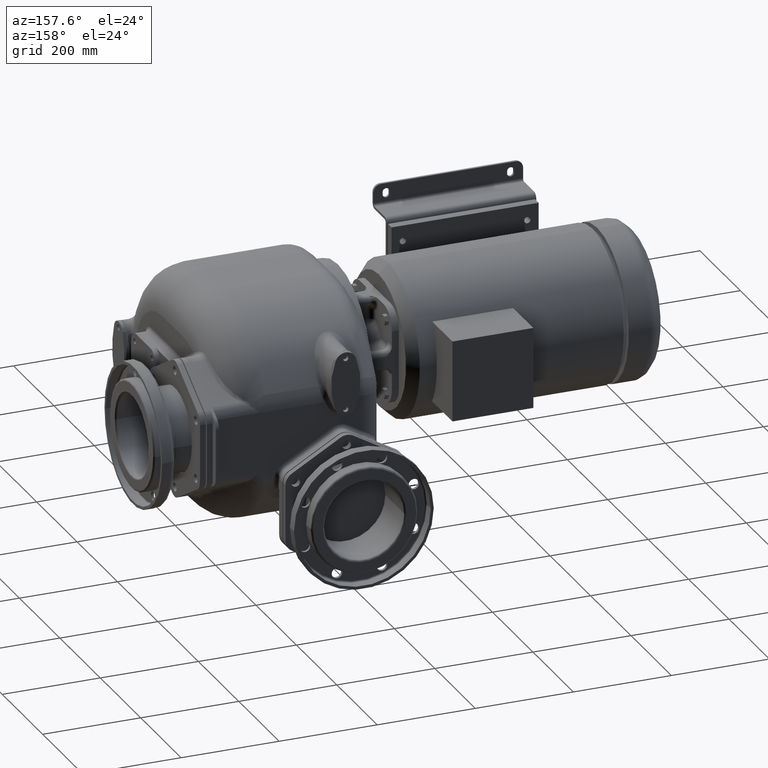
[diagram: clean part render]
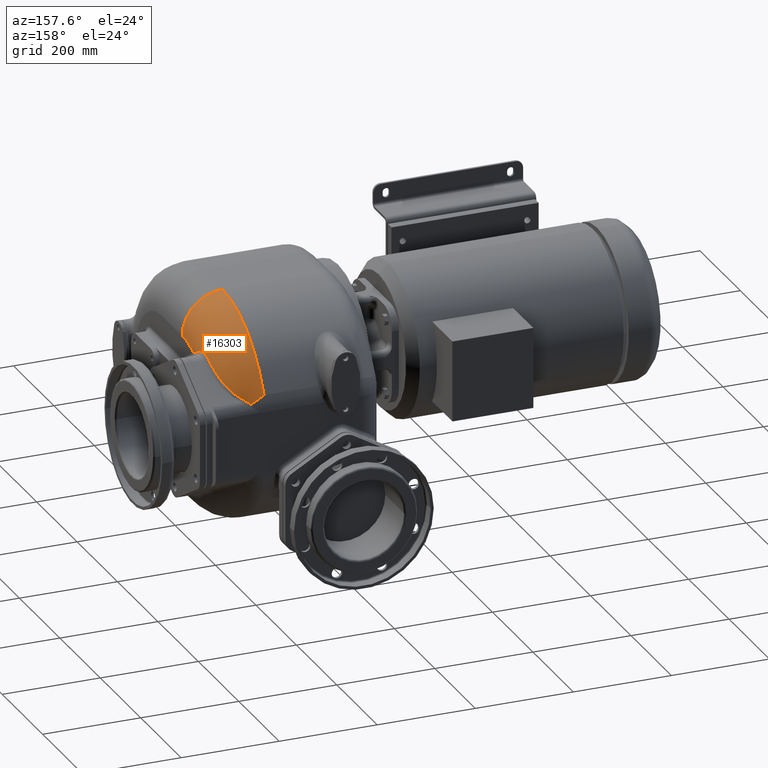
[diagram: same view with one face highlighted and labeled with its STEP entity id]
A machine part, auxiliary view. The second image highlights one B-rep face of the part: STEP entity #16303.
In plain terms, the highlighted toroidal blend (fillet) surface has major radius 144 mm and minor (blend) radius 82 mm.
Its self-contained STEP definition (entity closure, byte-faithful):
#3371=CARTESIAN_POINT('',(1.52E2,3.17E2,1.18E2));
#3372=DIRECTION('',(0.E0,-1.E0,0.E0));
#3373=DIRECTION('',(1.E0,0.E0,0.E0));
#3374=AXIS2_PLACEMENT_3D('',#3371,#3372,#3373);
#3403=CARTESIAN_POINT('',(2.34E2,3.17E2,-2.6E1));
#3404=DIRECTION('',(1.E0,0.E0,0.E0));
#3405=DIRECTION('',(0.E0,3.920216377864E-1,9.199559965060E-1));
#3406=AXIS2_PLACEMENT_3D('',#3403,#3404,#3405);
#3494=CARTESIAN_POINT('',(2.321317186955E2,3.927035971021E2,1.165492718343E2));
#3495=CARTESIAN_POINT('',(2.322515144893E2,3.921139237791E2,1.162379163257E2));
#3496=CARTESIAN_POINT('',(2.324805429428E2,3.909245855901E2,1.156104197928E2));
#3497=CARTESIAN_POINT('',(2.327912722279E2,3.891121230468E2,1.146557054030E2));
#3498=CARTESIAN_POINT('',(2.330686238635E2,3.872697094560E2,1.136868201664E2));
#3499=CARTESIAN_POINT('',(2.333118196198E2,3.853966268619E2,1.127034952409E2));
#3500=CARTESIAN_POINT('',(2.335200743727E2,3.834919360852E2,1.117053337833E2));
#3501=CARTESIAN_POINT('',(2.336925754495E2,3.815546156491E2,1.106919107675E2));
#3502=CARTESIAN_POINT('',(2.338286851201E2,3.795798967100E2,1.096608431027E2));
#3503=CARTESIAN_POINT('',(2.339272692212E2,3.775651036005E2,1.086108673808E2));
#3504=CARTESIAN_POINT('',(2.339867897909E2,3.755193127782E2,1.075468336934E2));
#3505=CARTESIAN_POINT('',(2.340000000029E2,3.741428994910E2,1.068323819433E2));
#3506=CARTESIAN_POINT('',(2.34E2,3.734511158413E2,1.064736634968E2));
#3508=CARTESIAN_POINT('',(1.52E2,5.231279916753E2,6.666742171816E1));
#3509=CARTESIAN_POINT('',(1.525476098181E2,5.232437665645E2,6.640973919609E1));
#3510=CARTESIAN_POINT('',(1.536461971893E2,5.234613545323E2,6.589653706067E1));
#3511=CARTESIAN_POINT('',(1.552860278752E2,5.237590665574E2,6.510229427861E1));
#3512=CARTESIAN_POINT('',(1.569258113718E2,5.240213839529E2,6.429922502859E1));
#3513=CARTESIAN_POINT('',(1.585626294226E2,5.242500690671E2,6.348351132462E1));
#3514=CARTESIAN_POINT('',(1.601964887436E2,5.244446250715E2,6.265654197137E1));
#3515=CARTESIAN_POINT('',(1.618266311171E2,5.246051810007E2,6.181829357268E1));
#3516=CARTESIAN_POINT('',(1.634524442247E2,5.247316945766E2,6.096917398003E1));
#3517=CARTESIAN_POINT('',(1.650726208904E2,5.248242658150E2,6.010956585710E1));
#3518=CARTESIAN_POINT('',(1.666861503339E2,5.248826961255E2,5.924063410068E1));
#3519=CARTESIAN_POINT('',(1.682920369916E2,5.249068898246E2,5.836343293712E1));
#3520=CARTESIAN_POINT('',(1.698893466095E2,5.248967896786E2,5.747903339403E1));
#3521=CARTESIAN_POINT('',(1.714771279006E2,5.248524248093E2,5.658844627062E1));
#3522=CARTESIAN_POINT('',(1.730550071659E2,5.247737512938E2,5.569260335306E1));
#3523=CARTESIAN_POINT('',(1.746228044361E2,5.246611018996E2,5.479130765666E1));
#3524=CARTESIAN_POINT('',(1.761801775788E2,5.245146259742E2,5.388491649762E1));
#3525=CARTESIAN_POINT('',(1.777271202571E2,5.243342933636E2,5.297386472911E1));
#3526=CARTESIAN_POINT('',(1.787515026607E2,5.241915280867E2,5.236361443290E1));
#3527=CARTESIAN_POINT('',(1.792618516943E2,5.241144961274E2,5.205787977835E1));
#3529=CARTESIAN_POINT('',(1.792618516943E2,5.241144961274E2,5.205787977835E1));
#3530=CARTESIAN_POINT('',(1.794398320385E2,5.239783655962E2,5.224119004815E1));
#3531=CARTESIAN_POINT('',(1.798112597407E2,5.236956159346E2,5.261428924797E1));
#3532=CARTESIAN_POINT('',(1.804160180316E2,5.232393952509E2,5.319034590616E1));
#3533=CARTESIAN_POINT('',(1.810710228078E2,5.227487469259E2,5.378146207741E1));
#3534=CARTESIAN_POINT('',(1.817781252528E2,5.222216166884E2,5.438603303125E1));
#3535=CARTESIAN_POINT('',(1.825384507413E2,5.216559666116E2,5.500252034707E1));
#3536=CARTESIAN_POINT('',(1.833534192400E2,5.210486010806E2,5.563130357166E1));
#3537=CARTESIAN_POINT('',(1.842171511353E2,5.204022026262E2,5.626565503895E1));
#3538=CARTESIAN_POINT('',(1.851188037123E2,5.197236805795E2,5.689503317911E1));
#3539=CARTESIAN_POINT('',(1.860522581605E2,5.190161071538E2,5.751439886623E1));
#3540=CARTESIAN_POINT('',(1.870180884409E2,5.182772518212E2,5.812399793006E1));
#3541=CARTESIAN_POINT('',(1.880133311360E2,5.175075113341E2,5.872170797635E1));
#3542=CARTESIAN_POINT('',(1.890304924486E2,5.167114506013E2,5.930186276848E1));
#3543=CARTESIAN_POINT('',(1.900633351963E2,5.158926644931E2,5.986064552426E1));
#3544=CARTESIAN_POINT('',(1.907558414014E2,5.153360938961E2,6.021573494506E1));
#3545=CARTESIAN_POINT('',(1.911034203014E2,5.150546779088E2,6.038923906389E1));
#3547=CARTESIAN_POINT('',(1.911034203014E2,5.150546779088E2,6.038923906389E1));
#3548=CARTESIAN_POINT('',(1.914705191455E2,5.147574621290E2,6.057248726E1));
#3549=CARTESIAN_POINT('',(1.922031359568E2,5.141517667587E2,6.094593266235E1));
#3550=CARTESIAN_POINT('',(1.932961486046E2,5.132094202626E2,6.152694064062E1));
#3551=CARTESIAN_POINT('',(1.943833260291E2,5.122321788532E2,6.212945729494E1));
#3552=CARTESIAN_POINT('',(1.954643373029E2,5.112192121138E2,6.275399730970E1));
#3553=CARTESIAN_POINT('',(1.965389322569E2,5.101695644483E2,6.340113876062E1));
#3554=CARTESIAN_POINT('',(1.976067582258E2,5.090822992510E2,6.407145239221E1));
#3555=CARTESIAN_POINT('',(1.986673211673E2,5.079565657185E2,6.476545380427E1));
#3556=CARTESIAN_POINT('',(1.997200699077E2,5.067915223362E2,6.548364794977E1));
#3557=CARTESIAN_POINT('',(2.007642508143E2,5.055865285318E2,6.622641833700E1));
#3558=CARTESIAN_POINT('',(2.018000635657E2,5.043397617003E2,6.699487498732E1));
#3559=CARTESIAN_POINT('',(2.028277767553E2,5.030490943993E2,6.779030941353E1));
#3560=CARTESIAN_POINT('',(2.038477649826E2,5.017119669027E2,6.861427523452E1));
#3561=CARTESIAN_POINT('',(2.048579737418E2,5.003288685377E2,6.946644768637E1));
#3562=CARTESIAN_POINT('',(2.058555192387E2,4.989017891760E2,7.034557341514E1));
#3563=CARTESIAN_POINT('',(2.068380211396E2,4.974324587039E2,7.125054960526E1));
#3564=CARTESIAN_POINT('',(2.078029141393E2,4.959233274395E2,7.217983232245E1));
#3565=CARTESIAN_POINT('',(2.087476940200E2,4.943773055484E2,7.313159673505E1));
#3566=CARTESIAN_POINT('',(2.096700223833E2,4.927976492014E2,7.410379158600E1));
#3567=CARTESIAN_POINT('',(2.105684533114E2,4.911866920537E2,7.509492930556E1));
#3568=CARTESIAN_POINT('',(2.114436356993E2,4.895431553304E2,7.610576066551E1));
#3569=CARTESIAN_POINT('',(2.122958272817E2,4.878662704945E2,7.713670474694E1));
#3570=CARTESIAN_POINT('',(2.131253579884E2,4.861550070378E2,7.818832076573E1));
#3571=CARTESIAN_POINT('',(2.139320710302E2,4.844092022682E2,7.926065031337E1));
#3572=CARTESIAN_POINT('',(2.147157058803E2,4.826289580945E2,8.035357112184E1));
#3573=CARTESIAN_POINT('',(2.154760566476E2,4.808143285270E2,8.146696814E1));
#3574=CARTESIAN_POINT('',(2.162129371660E2,4.789654026779E2,8.260068090590E1));
#3575=CARTESIAN_POINT('',(2.169262809386E2,4.770819684468E2,8.375476930353E1));
#3576=CARTESIAN_POINT('',(2.176160278014E2,4.751638183128E2,8.492927258748E1));
#3577=CARTESIAN_POINT('',(2.182821293177E2,4.732107534373E2,8.612420114711E1));
#3578=CARTESIAN_POINT('',(2.189245536529E2,4.712225773008E2,8.733953220182E1));
#3579=CARTESIAN_POINT('',(2.195431844177E2,4.691993359337E2,8.857514085592E1));
#3580=CARTESIAN_POINT('',(2.201379399294E2,4.671410688792E2,8.983088717824E1));
#3581=CARTESIAN_POINT('',(2.207087295417E2,4.650479776018E2,9.110650512689E1));
#3582=CARTESIAN_POINT('',(2.212555073577E2,4.629202784790E2,9.240168155358E1));
#3583=CARTESIAN_POINT('',(2.217782546707E2,4.607581164023E2,9.371619777119E1));
#3584=CARTESIAN_POINT('',(2.222769842167E2,4.585616324822E2,9.504982384053E1));
#3585=CARTESIAN_POINT('',(2.227517480626E2,4.563309564074E2,9.640230210054E1));
#3586=CARTESIAN_POINT('',(2.232026262510E2,4.540662357865E2,9.777332918082E1));
#3587=CARTESIAN_POINT('',(2.236296176564E2,4.517680458625E2,9.916240265170E1));
#3588=CARTESIAN_POINT('',(2.240327735726E2,4.494369477432E2,1.005690025709E2));
#3589=CARTESIAN_POINT('',(2.244122041040E2,4.470734272359E2,1.019926091100E2));
#3590=CARTESIAN_POINT('',(2.247679819557E2,4.446783153763E2,1.034325208354E2));
#3591=CARTESIAN_POINT('',(2.251001780532E2,4.422526596596E2,1.048879308584E2));
#3592=CARTESIAN_POINT('',(2.254089339728E2,4.397973862228E2,1.063580517448E2));
#3593=CARTESIAN_POINT('',(2.256943785181E2,4.373136677842E2,1.078419691916E2));
#3594=CARTESIAN_POINT('',(2.259566296438E2,4.348029147650E2,1.093386688045E2));
#3595=CARTESIAN_POINT('',(2.261958599763E2,4.322664377991E2,1.108471441799E2));
#3596=CARTESIAN_POINT('',(2.264122442489E2,4.297056435955E2,1.123663496564E2));
#3597=CARTESIAN_POINT('',(2.266059600714E2,4.271216119272E2,1.138954991993E2));
#3598=CARTESIAN_POINT('',(2.267200682836E2,4.253849640354E2,1.149205311976E2));
#3599=CARTESIAN_POINT('',(2.267734300279E2,4.245127567426E2,1.154346437723E2));
#3601=CARTESIAN_POINT('',(2.267734300279E2,4.245127567426E2,1.154346437723E2));
#3602=CARTESIAN_POINT('',(2.267880339409E2,4.242740589799E2,1.155753366113E2));
#3603=CARTESIAN_POINT('',(2.268196665108E2,4.237928738021E2,1.158511027732E2));
#3604=CARTESIAN_POINT('',(2.268742961231E2,4.230597389222E2,1.162478741530E2));
#3605=CARTESIAN_POINT('',(2.269359798519E2,4.223160223708E2,1.166273000940E2));
#3606=CARTESIAN_POINT('',(2.270045919504E2,4.215622976572E2,1.169890279769E2));
#3607=CARTESIAN_POINT('',(2.270799991793E2,4.207991943582E2,1.173326681860E2));
#3608=CARTESIAN_POINT('',(2.271620631497E2,4.200273375489E2,1.176578289682E2));
#3609=CARTESIAN_POINT('',(2.272506398910E2,4.192473404330E2,1.179641233140E2));
#3610=CARTESIAN_POINT('',(2.273455789822E2,4.184599034682E2,1.182511022153E2));
#3611=CARTESIAN_POINT('',(2.274467401E2,4.176652495855E2,1.185186031692E2));
#3612=CARTESIAN_POINT('',(2.275539749567E2,4.168634074018E2,1.187665879372E2));
#3613=CARTESIAN_POINT('',(2.276671545677E2,4.160543585084E2,1.189949560395E2));
#3614=CARTESIAN_POINT('',(2.277860926397E2,4.152384901760E2,1.192034565874E2));
#3615=CARTESIAN_POINT('',(2.279105204245E2,4.144166863539E2,1.193917223562E2));
#3616=CARTESIAN_POINT('',(2.280401641024E2,4.135897639040E2,1.195594394893E2));
#3617=CARTESIAN_POINT('',(2.281747400571E2,4.127585091023E2,1.197063352880E2));
#3618=CARTESIAN_POINT('',(2.283139643288E2,4.119235359244E2,1.198322424611E2));
#3619=CARTESIAN_POINT('',(2.284575446902E2,4.110854745076E2,1.199369959149E2));
#3620=CARTESIAN_POINT('',(2.286051646731E2,4.102450490656E2,1.200204349190E2));
#3621=CARTESIAN_POINT('',(2.287564817915E2,4.094030813254E2,1.200824144689E2));
#3622=CARTESIAN_POINT('',(2.289111455133E2,4.085603992957E2,1.201228144559E2));
#3623=CARTESIAN_POINT('',(2.290688134580E2,4.077176942530E2,1.201415785546E2));
#3624=CARTESIAN_POINT('',(2.292291453992E2,4.068755900418E2,1.201386859054E2));
#3625=CARTESIAN_POINT('',(2.293917871554E2,4.060347664602E2,1.201141276492E2));
#3626=CARTESIAN_POINT('',(2.295563462601E2,4.051960729061E2,1.200679286292E2));
#3627=CARTESIAN_POINT('',(2.297224295060E2,4.043603397920E2,1.200001485601E2));
#3628=CARTESIAN_POINT('',(2.298896417257E2,4.035283605208E2,1.199108989782E2));
#3629=CARTESIAN_POINT('',(2.300575929051E2,4.027008937370E2,1.198003193464E2));
#3630=CARTESIAN_POINT('',(2.302258840133E2,4.018787376077E2,1.196685863051E2));
#3631=CARTESIAN_POINT('',(2.303940979134E2,4.010627793052E2,1.195159291028E2));
#3632=CARTESIAN_POINT('',(2.305618225825E2,4.002538780454E2,1.193426232874E2));
#3633=CARTESIAN_POINT('',(2.307286596825E2,3.994528306298E2,1.191489794630E2));
#3634=CARTESIAN_POINT('',(2.308942145415E2,3.986604403999E2,1.189353454561E2));
#3635=CARTESIAN_POINT('',(2.310581258290E2,3.978773662563E2,1.187020755184E2));
#3636=CARTESIAN_POINT('',(2.312200829136E2,3.971040499098E2,1.184494820677E2));
#3637=CARTESIAN_POINT('',(2.313797820649E2,3.963409275695E2,1.181778812893E2));
#3638=CARTESIAN_POINT('',(2.315368691253E2,3.955886514428E2,1.178877376072E2));
#3639=CARTESIAN_POINT('',(2.316909967345E2,3.948479023411E2,1.175795473910E2));
#3640=CARTESIAN_POINT('',(2.318418325459E2,3.941193485756E2,1.172538314874E2));
#3641=CARTESIAN_POINT('',(2.319890784343E2,3.934035550807E2,1.169110848555E2));
#3642=CARTESIAN_POINT('',(2.320846183543E2,3.929354420148E2,1.166716850009E2));
#3643=CARTESIAN_POINT('',(2.321317186955E2,3.927035971021E2,1.165492718343E2));
#3811=CARTESIAN_POINT('',(1.52E2,3.17E2,-2.6E1));
#3812=DIRECTION('',(1.E0,0.E0,0.E0));
#3813=DIRECTION('',(0.E0,9.120707596254E-1,4.100328394609E-1));
#3814=AXIS2_PLACEMENT_3D('',#3811,#3812,#3813);
#10908=CARTESIAN_POINT('',(1.52E2,3.169999999999E2,2.E2));
#10910=VERTEX_POINT('',#10908);
#11003=CARTESIAN_POINT('',(2.34E2,3.17E2,1.18E2));
#11004=VERTEX_POINT('',#11003);
#11017=CARTESIAN_POINT('',(1.52E2,5.231279916753E2,6.666742171816E1));
#11018=VERTEX_POINT('',#11017);
#11167=CARTESIAN_POINT('',(2.34E2,3.734511158413E2,1.064736634968E2));
#11168=VERTEX_POINT('',#11167);
#11171=VERTEX_POINT('',#3494);
#11173=VERTEX_POINT('',#3601);
#11175=VERTEX_POINT('',#3547);
#11177=VERTEX_POINT('',#3529);
#16283=CARTESIAN_POINT('',(1.52E2,3.17E2,-2.6E1));
#16284=DIRECTION('',(-1.E0,0.E0,0.E0));
#16285=DIRECTION('',(0.E0,9.151096726718E-1,4.032050185482E-1));
#16286=AXIS2_PLACEMENT_3D('',#16283,#16284,#16285);
#16287=TOROIDAL_SURFACE('',#16286,1.44E2,8.2E1);
#16288=ORIENTED_EDGE('',*,*,#16273,.T.);
#16289=ORIENTED_EDGE('',*,*,#16084,.T.);
#16290=ORIENTED_EDGE('',*,*,#16065,.T.);
#16292=ORIENTED_EDGE('',*,*,#16291,.F.);
#16294=ORIENTED_EDGE('',*,*,#16293,.T.);
#16296=ORIENTED_EDGE('',*,*,#16295,.T.);
#16298=ORIENTED_EDGE('',*,*,#16297,.T.);
#16300=ORIENTED_EDGE('',*,*,#16299,.T.);
#16301=EDGE_LOOP('',(#16288,#16289,#16290,#16292,#16294,#16296,#16298,#16300));
#16302=FACE_OUTER_BOUND('',#16301,.F.);
#16303=ADVANCED_FACE('',(#16302),#16287,.T.);
#3375=CIRCLE('',#3374,8.2E1);
#3407=CIRCLE('',#3406,1.44E2);
#3507=B_SPLINE_CURVE_WITH_KNOTS('',3,(#3494,#3495,#3496,#3497,#3498,#3499,#3500,
#3501,#3502,#3503,#3504,#3505,#3506),.UNSPECIFIED.,.F.,.F.,(4,1,1,1,1,1,1,1,1,1,
4),(0.E0,1.E-1,2.E-1,3.E-1,4.E-1,5.E-1,6.E-1,7.E-1,8.E-1,9.E-1,1.E0),
.UNSPECIFIED.);
#3528=B_SPLINE_CURVE_WITH_KNOTS('',3,(#3508,#3509,#3510,#3511,#3512,#3513,#3514,
#3515,#3516,#3517,#3518,#3519,#3520,#3521,#3522,#3523,#3524,#3525,#3526,#3527),
.UNSPECIFIED.,.F.,.F.,(4,1,1,1,1,1,1,1,1,1,1,1,1,1,1,1,1,4),(0.E0,
5.882352941176E-2,1.176470588235E-1,1.764705882353E-1,2.352941176471E-1,
2.941176470588E-1,3.529411764706E-1,4.117647058824E-1,4.705882352941E-1,
5.294117647059E-1,5.882352941176E-1,6.470588235294E-1,7.058823529412E-1,
7.647058823529E-1,8.235294117647E-1,8.823529411765E-1,9.411764705882E-1,1.E0),
.UNSPECIFIED.);
#3546=B_SPLINE_CURVE_WITH_KNOTS('',3,(#3529,#3530,#3531,#3532,#3533,#3534,#3535,
#3536,#3537,#3538,#3539,#3540,#3541,#3542,#3543,#3544,#3545),.UNSPECIFIED.,.F.,
.F.,(4,1,1,1,1,1,1,1,1,1,1,1,1,1,4),(0.E0,7.142857142857E-2,1.428571428571E-1,
2.142857142857E-1,2.857142857143E-1,3.571428571429E-1,4.285714285714E-1,5.E-1,
5.714285714286E-1,6.428571428571E-1,7.142857142857E-1,7.857142857143E-1,
8.571428571429E-1,9.285714285714E-1,1.E0),.UNSPECIFIED.);
#3600=B_SPLINE_CURVE_WITH_KNOTS('',3,(#3547,#3548,#3549,#3550,#3551,#3552,#3553,
#3554,#3555,#3556,#3557,#3558,#3559,#3560,#3561,#3562,#3563,#3564,#3565,#3566,
#3567,#3568,#3569,#3570,#3571,#3572,#3573,#3574,#3575,#3576,#3577,#3578,#3579,
#3580,#3581,#3582,#3583,#3584,#3585,#3586,#3587,#3588,#3589,#3590,#3591,#3592,
#3593,#3594,#3595,#3596,#3597,#3598,#3599),.UNSPECIFIED.,.F.,.F.,(4,1,1,1,1,1,1,
1,1,1,1,1,1,1,1,1,1,1,1,1,1,1,1,1,1,1,1,1,1,1,1,1,1,1,1,1,1,1,1,1,1,1,1,1,1,1,1,
1,1,1,4),(0.E0,2.E-2,4.E-2,6.E-2,8.E-2,1.E-1,1.2E-1,1.4E-1,1.6E-1,1.8E-1,2.E-1,
2.2E-1,2.4E-1,2.6E-1,2.8E-1,3.E-1,3.2E-1,3.4E-1,3.6E-1,3.8E-1,4.E-1,4.2E-1,
4.4E-1,4.6E-1,4.8E-1,5.E-1,5.2E-1,5.4E-1,5.6E-1,5.8E-1,6.E-1,6.2E-1,6.4E-1,
6.6E-1,6.8E-1,7.E-1,7.2E-1,7.4E-1,7.6E-1,7.8E-1,8.E-1,8.2E-1,8.4E-1,8.6E-1,
8.8E-1,9.E-1,9.2E-1,9.4E-1,9.6E-1,9.8E-1,1.E0),.UNSPECIFIED.);
#3644=B_SPLINE_CURVE_WITH_KNOTS('',3,(#3601,#3602,#3603,#3604,#3605,#3606,#3607,
#3608,#3609,#3610,#3611,#3612,#3613,#3614,#3615,#3616,#3617,#3618,#3619,#3620,
#3621,#3622,#3623,#3624,#3625,#3626,#3627,#3628,#3629,#3630,#3631,#3632,#3633,
#3634,#3635,#3636,#3637,#3638,#3639,#3640,#3641,#3642,#3643),.UNSPECIFIED.,.F.,
.F.,(4,1,1,1,1,1,1,1,1,1,1,1,1,1,1,1,1,1,1,1,1,1,1,1,1,1,1,1,1,1,1,1,1,1,1,1,1,
1,1,1,4),(0.E0,2.5E-2,5.E-2,7.5E-2,1.E-1,1.25E-1,1.5E-1,1.75E-1,2.E-1,2.25E-1,
2.5E-1,2.75E-1,3.E-1,3.25E-1,3.5E-1,3.75E-1,4.E-1,4.25E-1,4.5E-1,4.75E-1,5.E-1,
5.25E-1,5.5E-1,5.75E-1,6.E-1,6.25E-1,6.5E-1,6.75E-1,7.E-1,7.25E-1,7.5E-1,
7.75E-1,8.E-1,8.25E-1,8.5E-1,8.75E-1,9.E-1,9.25E-1,9.5E-1,9.75E-1,1.E0),
.UNSPECIFIED.);
#3815=CIRCLE('',#3814,2.26E2);
#16065=EDGE_CURVE('',#11004,#10910,#3375,.T.);
#16084=EDGE_CURVE('',#11168,#11004,#3407,.T.);
#16273=EDGE_CURVE('',#11171,#11168,#3507,.T.);
#16291=EDGE_CURVE('',#11018,#10910,#3815,.T.);
#16293=EDGE_CURVE('',#11018,#11177,#3528,.T.);
#16295=EDGE_CURVE('',#11177,#11175,#3546,.T.);
#16297=EDGE_CURVE('',#11175,#11173,#3600,.T.);
#16299=EDGE_CURVE('',#11173,#11171,#3644,.T.);